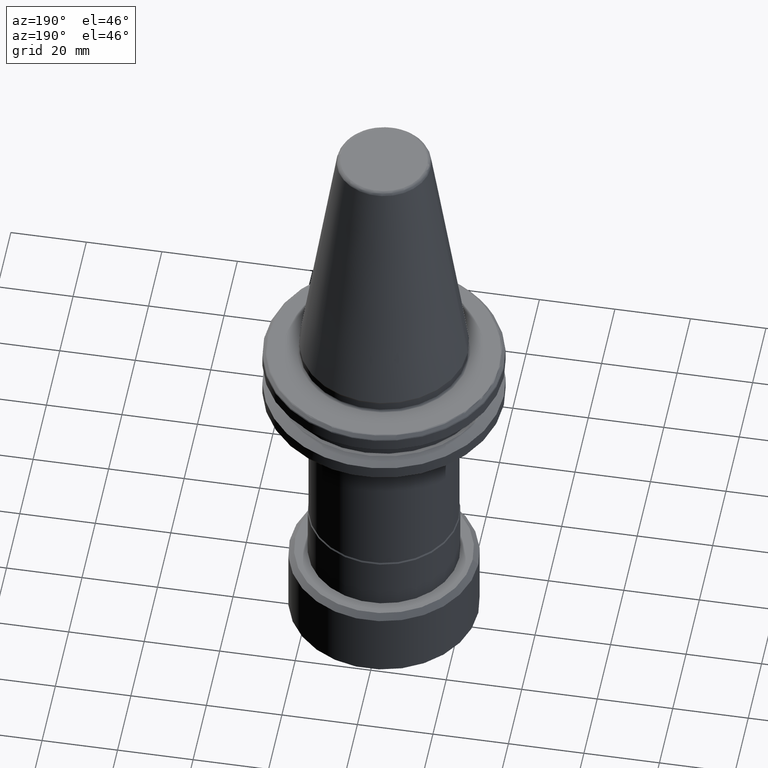
[diagram: clean part render]
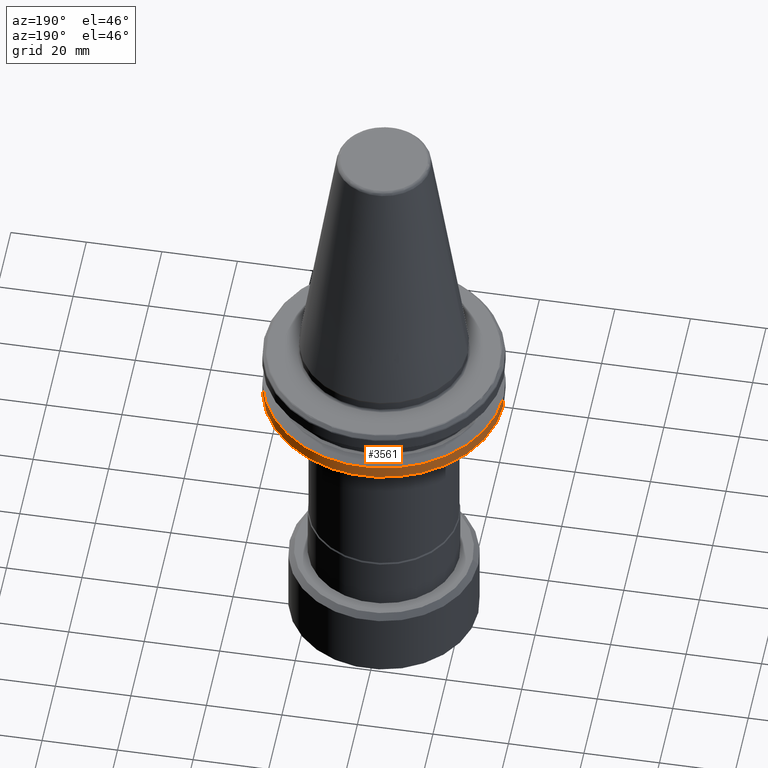
[diagram: same view with one face highlighted and labeled with its STEP entity id]
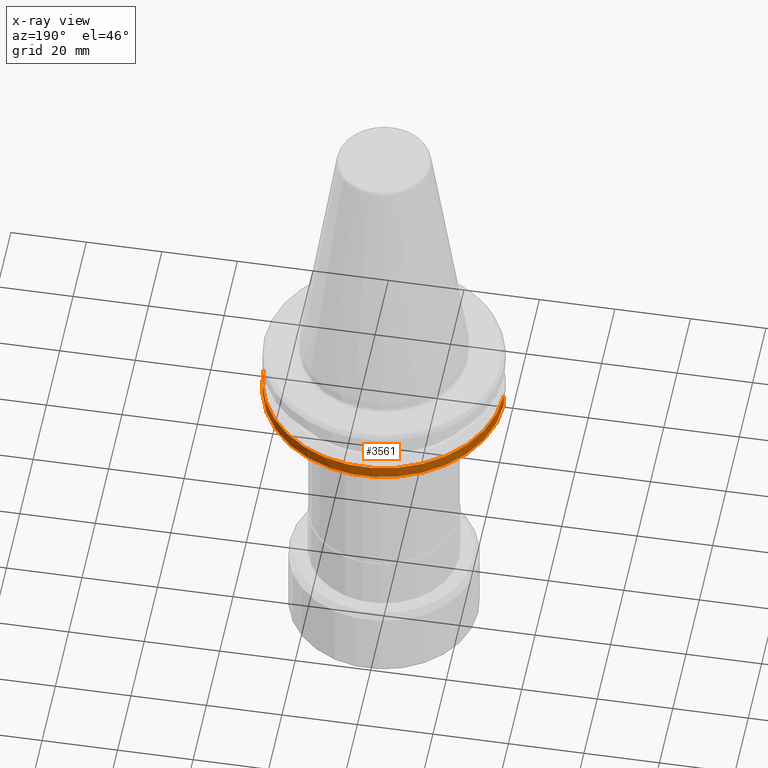
[diagram: x-ray of the same camera — body ghosted, the highlighted face saturated]
A machine part, auxiliary view. The second image highlights one B-rep face of the part: STEP entity #3561.
The next image is the same camera in x-ray: the body ghosted, the highlighted face saturated — about 0% of this face is hidden behind the body in this view.
In plain terms, the highlighted cylindrical surface (partial cylindrical patch) has radius 31.75 mm, axis along (0, 0, 1).
Its self-contained STEP definition (entity closure, byte-faithful):
#6 = EDGE_CURVE ( 'NONE', #807, #3557, #3724, .T. ) ;
#121 = VECTOR ( 'NONE', #3832, 1000.000000000000000 ) ;
#469 = DIRECTION ( 'NONE',  ( 0.0000000000000000000, 0.0000000000000000000, 1.000000000000000000 ) ) ;
#511 = ORIENTED_EDGE ( 'NONE', *, *, #1350, .T. ) ;
#555 = EDGE_CURVE ( 'NONE', #807, #878, #1189, .T. ) ;
#591 = CARTESIAN_POINT ( 'NONE',  ( 0.0000000000000000000, 0.0000000000000000000, -17.93431457499999800 ) ) ;
#647 = CIRCLE ( 'NONE', #1203, 31.75000000054813800 ) ;
#700 = AXIS2_PLACEMENT_3D ( 'NONE', #591, #3711, #2985 ) ;
#781 = DIRECTION ( 'NONE',  ( 1.000000000000000000, 0.0000000000000000000, 0.0000000000000000000 ) ) ;
#807 = VERTEX_POINT ( 'NONE', #1638 ) ;
#841 = CIRCLE ( 'NONE', #2139, 31.75000000000000000 ) ;
#866 = ORIENTED_EDGE ( 'NONE', *, *, #555, .F. ) ;
#878 = VERTEX_POINT ( 'NONE', #3288 ) ;
#1062 = VERTEX_POINT ( 'NONE', #4047 ) ;
#1189 = LINE ( 'NONE', #2252, #121 ) ;
#1203 = AXIS2_PLACEMENT_3D ( 'NONE', #2317, #2306, #2300 ) ;
#1285 = ORIENTED_EDGE ( 'NONE', *, *, #1515, .T. ) ;
#1348 = LINE ( 'NONE', #2321, #2025 ) ;
#1350 = EDGE_CURVE ( 'NONE', #1062, #3008, #3491, .T. ) ;
#1408 = AXIS2_PLACEMENT_3D ( 'NONE', #1978, #469, #781 ) ;
#1515 = EDGE_CURVE ( 'NONE', #3557, #1062, #841, .T. ) ;
#1526 = ORIENTED_EDGE ( 'NONE', *, *, #2747, .F. ) ;
#1533 = CARTESIAN_POINT ( 'NONE',  ( -31.75000000000000000, 3.888253587292846500E-015, -17.93431457417125300 ) ) ;
#1594 = FACE_OUTER_BOUND ( 'NONE', #3891, .T. ) ;
#1633 = CARTESIAN_POINT ( 'NONE',  ( -31.75000000000000000, 3.888253587292846500E-015, -14.62183664200001100 ) ) ;
#1638 = CARTESIAN_POINT ( 'NONE',  ( 31.75000000000000000, -5.701922373415167100E-010, -17.93431457499999800 ) ) ;
#1639 = CYLINDRICAL_SURFACE ( 'NONE', #1408, 31.75000000000000000 ) ;
#1737 = CARTESIAN_POINT ( 'NONE',  ( 8.600431038092091600, 30.56296919409209100, -17.93431457499999800 ) ) ;
#1815 = DIRECTION ( 'NONE',  ( 0.0000000000000000000, 0.0000000000000000000, 1.000000000000000000 ) ) ;
#1817 = EDGE_CURVE ( 'NONE', #3008, #2401, #1348, .T. ) ;
#1960 = CARTESIAN_POINT ( 'NONE',  ( -8.717907038983790700, 30.52966748745299000, -14.62183664273912400 ) ) ;
#1978 = CARTESIAN_POINT ( 'NONE',  ( 0.0000000000000000000, 0.0000000000000000000, -17.93431457499999800 ) ) ;
#2025 = VECTOR ( 'NONE', #1815, 1000.000000000000000 ) ;
#2139 = AXIS2_PLACEMENT_3D ( 'NONE', #3173, #3171, #3167 ) ;
#2216 = DIRECTION ( 'NONE',  ( -1.000000000000000000, 0.0000000000000000000, -5.463695987328524000E-017 ) ) ;
#2222 = DIRECTION ( 'NONE',  ( -2.997010603902405300E-017, -0.0000000000000000000, 1.000000000000000000 ) ) ;
#2227 = CARTESIAN_POINT ( 'NONE',  ( 4.860661613871496800E-017, 0.0000000000000000000, -14.62183664200000900 ) ) ;
#2252 = CARTESIAN_POINT ( 'NONE',  ( 31.75000000000000000, 0.0000000000000000000, -17.93431457499999800 ) ) ;
#2300 = DIRECTION ( 'NONE',  ( -1.000000000000000000, 0.0000000000000000000, 5.463695987234200200E-017 ) ) ;
#2306 = DIRECTION ( 'NONE',  ( -0.0000000000000000000, -0.0000000000000000000, 1.000000000000000000 ) ) ;
#2317 = CARTESIAN_POINT ( 'NONE',  ( 0.0000000000000000000, 0.0000000000000000000, -14.62183664273912100 ) ) ;
#2320 = AXIS2_PLACEMENT_3D ( 'NONE', #2227, #2222, #2216 ) ;
#2321 = CARTESIAN_POINT ( 'NONE',  ( -31.75000000000000000, 3.888253587292846500E-015, -17.93431457499999800 ) ) ;
#2401 = VERTEX_POINT ( 'NONE', #1633 ) ;
#2716 = EDGE_CURVE ( 'NONE', #878, #2899, #647, .T. ) ;
#2745 = CIRCLE ( 'NONE', #2320, 31.75000000000001400 ) ;
#2747 = EDGE_CURVE ( 'NONE', #2899, #2401, #2745, .T. ) ;
#2899 = VERTEX_POINT ( 'NONE', #1960 ) ;
#2985 = DIRECTION ( 'NONE',  ( 1.000000000000000000, 0.0000000000000000000, 0.0000000000000000000 ) ) ;
#3008 = VERTEX_POINT ( 'NONE', #1533 ) ;
#3167 = DIRECTION ( 'NONE',  ( 1.000000000000000000, 0.0000000000000000000, 0.0000000000000000000 ) ) ;
#3171 = DIRECTION ( 'NONE',  ( -0.0000000000000000000, -0.0000000000000000000, 1.000000000000000000 ) ) ;
#3173 = CARTESIAN_POINT ( 'NONE',  ( 0.0000000000000000000, 0.0000000000000000000, -17.93431457499999800 ) ) ;
#3288 = CARTESIAN_POINT ( 'NONE',  ( 31.75000000054813800, 0.0000000000000000000, -14.62183664273912100 ) ) ;
#3401 = AXIS2_PLACEMENT_3D ( 'NONE', #3418, #3413, #3410 ) ;
#3410 = DIRECTION ( 'NONE',  ( 1.000000000000000000, 0.0000000000000000000, 0.0000000000000000000 ) ) ;
#3413 = DIRECTION ( 'NONE',  ( 0.0000000000000000000, 0.0000000000000000000, 1.000000000000000000 ) ) ;
#3418 = CARTESIAN_POINT ( 'NONE',  ( 0.0000000000000000000, 0.0000000000000000000, -17.93431457417125300 ) ) ;
#3419 = ORIENTED_EDGE ( 'NONE', *, *, #2716, .F. ) ;
#3491 = CIRCLE ( 'NONE', #3401, 31.75000000000000000 ) ;
#3557 = VERTEX_POINT ( 'NONE', #1737 ) ;
#3561 = ADVANCED_FACE ( 'NONE', ( #1594 ), #1639, .T. ) ;
#3599 = ORIENTED_EDGE ( 'NONE', *, *, #6, .T. ) ;
#3711 = DIRECTION ( 'NONE',  ( 0.0000000000000000000, 0.0000000000000000000, 1.000000000000000000 ) ) ;
#3724 = CIRCLE ( 'NONE', #700, 31.75000000000000000 ) ;
#3832 = DIRECTION ( 'NONE',  ( 0.0000000000000000000, 0.0000000000000000000, 1.000000000000000000 ) ) ;
#3866 = ORIENTED_EDGE ( 'NONE', *, *, #1817, .T. ) ;
#3891 = EDGE_LOOP ( 'NONE', ( #511, #3866, #1526, #3419, #866, #3599, #1285 ) ) ;
#4047 = CARTESIAN_POINT ( 'NONE',  ( -8.717907038370313400, 30.52966748705811600, -17.93431457499999800 ) ) ;